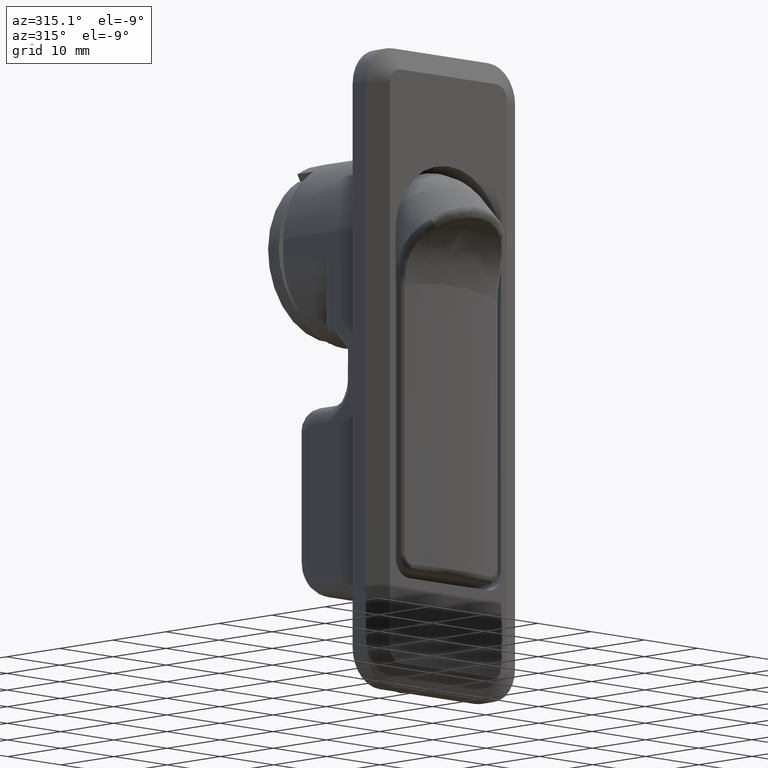
[diagram: clean part render]
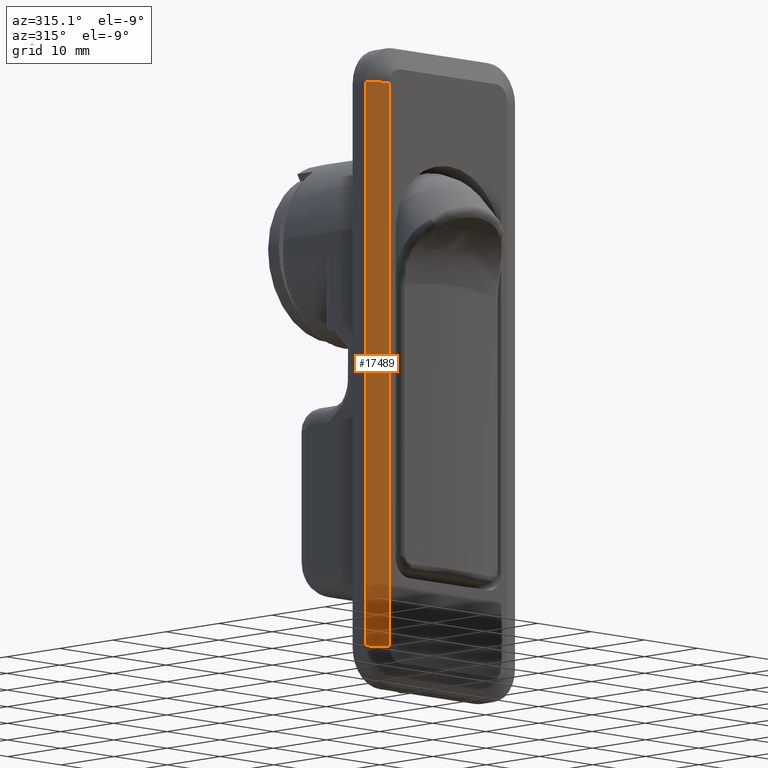
[diagram: same view with one face highlighted and labeled with its STEP entity id]
A machine part, auxiliary view. The second image highlights one B-rep face of the part: STEP entity #17489.
In plain terms, the highlighted face is a freeform B-spline surface patch.
Its self-contained STEP definition (entity closure, byte-faithful):
#17378=CARTESIAN_POINT('',(-2.999999999999915,11.0,-56.0));
#17379=VERTEX_POINT('',#17378);
#17380=CARTESIAN_POINT('',(-1.499999999999946,14.0,-56.0));
#17381=VERTEX_POINT('',#17380);
#17382=CARTESIAN_POINT('',(-2.999999999999915,11.0,-56.0));
#17383=CARTESIAN_POINT('',(-1.499999999999946,14.0,-56.0));
#17384=QUASI_UNIFORM_CURVE('',1,(#17382,#17383),.UNSPECIFIED.,.F.,.U.);
#17385=EDGE_CURVE('',#17379,#17381,#17384,.T.);
#17431=CARTESIAN_POINT('',(-1.499999999999946,14.0,20.0));
#17432=VERTEX_POINT('',#17431);
#17433=CARTESIAN_POINT('',(-2.999999999999915,10.999999999999840,20.0));
#17434=VERTEX_POINT('',#17433);
#17435=CARTESIAN_POINT('',(-1.499999999999946,14.0,20.0));
#17436=CARTESIAN_POINT('',(-2.999999999999915,10.999999999999840,20.0));
#17437=QUASI_UNIFORM_CURVE('',1,(#17435,#17436),.UNSPECIFIED.,.F.,.U.);
#17438=EDGE_CURVE('',#17432,#17434,#17437,.T.);
#17470=CARTESIAN_POINT('',(-3.074924997092689,10.850150005814450,-59.796199852697256));
#17471=CARTESIAN_POINT('',(-1.425074962674099,14.149850074651701,-59.796199852697256));
#17472=CARTESIAN_POINT('',(-3.074924997092689,10.850150005814450,23.796201891176100));
#17473=CARTESIAN_POINT('',(-1.425074962674099,14.149850074651701,23.796201891176100));
#17474=B_SPLINE_SURFACE_WITH_KNOTS('',1,1,((#17470,#17472),(#17471,#17473)),.UNSPECIFIED.,.F.,.F.,.U.,(2,2),(2,2),(0.0,3.689176829640396),(0.0,83.592401743873367),.UNSPECIFIED.);
#17475=ORIENTED_EDGE('',*,*,#17385,.F.);
#17476=CARTESIAN_POINT('',(-2.999999999999915,10.999999999999840,20.0));
#17477=CARTESIAN_POINT('',(-2.999999999999915,11.0,-56.0));
#17478=QUASI_UNIFORM_CURVE('',1,(#17476,#17477),.UNSPECIFIED.,.F.,.U.);
#17479=EDGE_CURVE('',#17434,#17379,#17478,.T.);
#17480=ORIENTED_EDGE('',*,*,#17479,.F.);
#17481=ORIENTED_EDGE('',*,*,#17438,.F.);
#17482=CARTESIAN_POINT('',(-1.499999999999946,14.0,-56.0));
#17483=CARTESIAN_POINT('',(-1.499999999999946,14.0,20.0));
#17484=QUASI_UNIFORM_CURVE('',1,(#17482,#17483),.UNSPECIFIED.,.F.,.U.);
#17485=EDGE_CURVE('',#17381,#17432,#17484,.T.);
#17486=ORIENTED_EDGE('',*,*,#17485,.F.);
#17487=EDGE_LOOP('',(#17475,#17480,#17481,#17486));
#17488=FACE_OUTER_BOUND('',#17487,.T.);
#17489=ADVANCED_FACE('',(#17488),#17474,.F.);